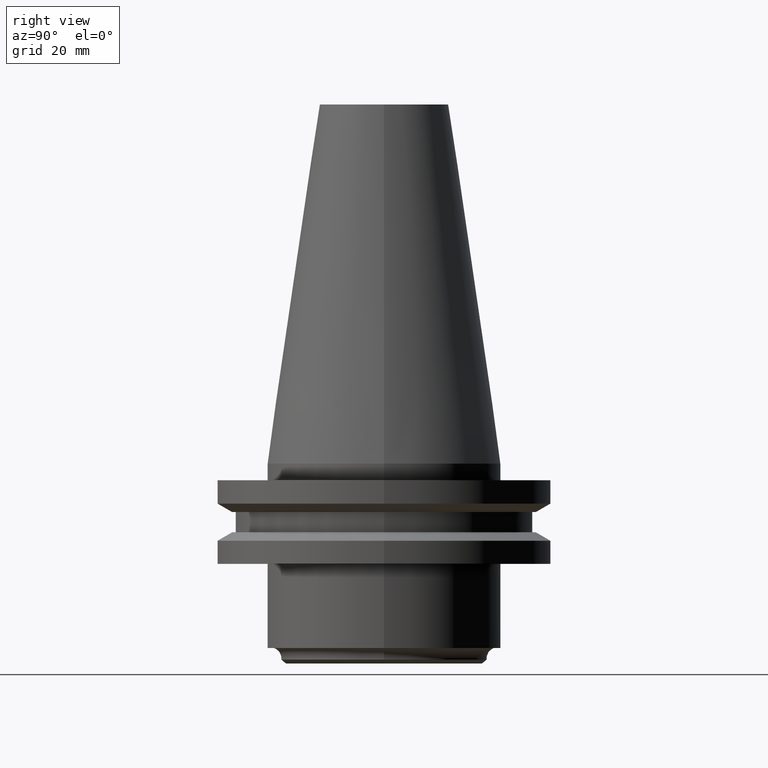
[diagram: clean part render]
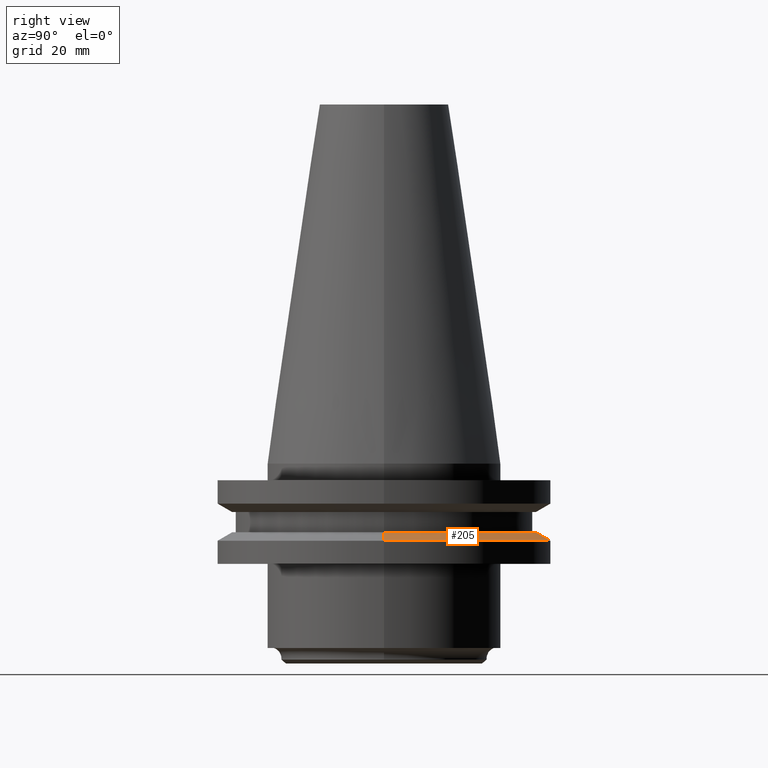
[diagram: same view with one face highlighted and labeled with its STEP entity id]
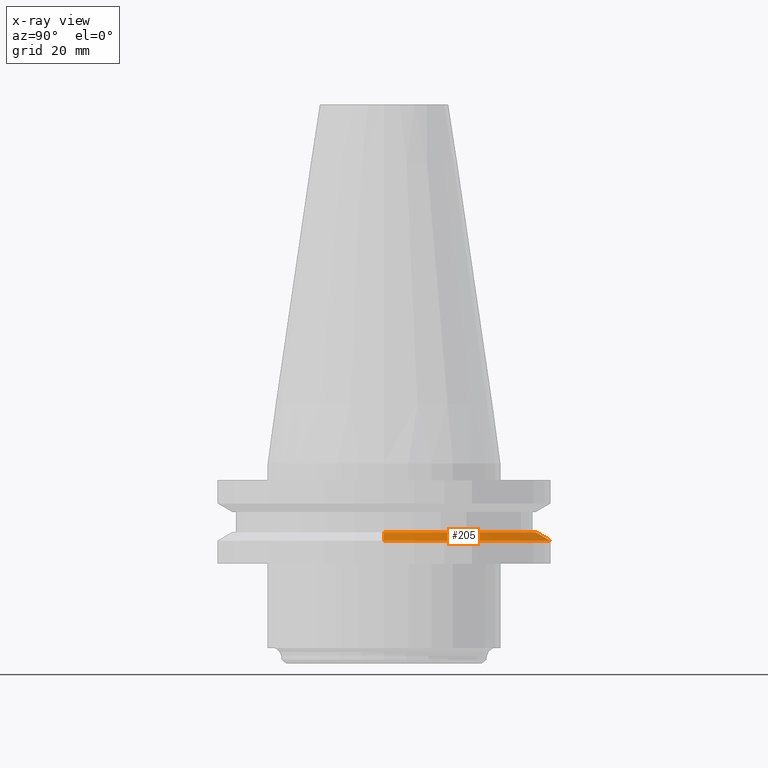
[diagram: x-ray of the same camera — body ghosted, the highlighted face saturated]
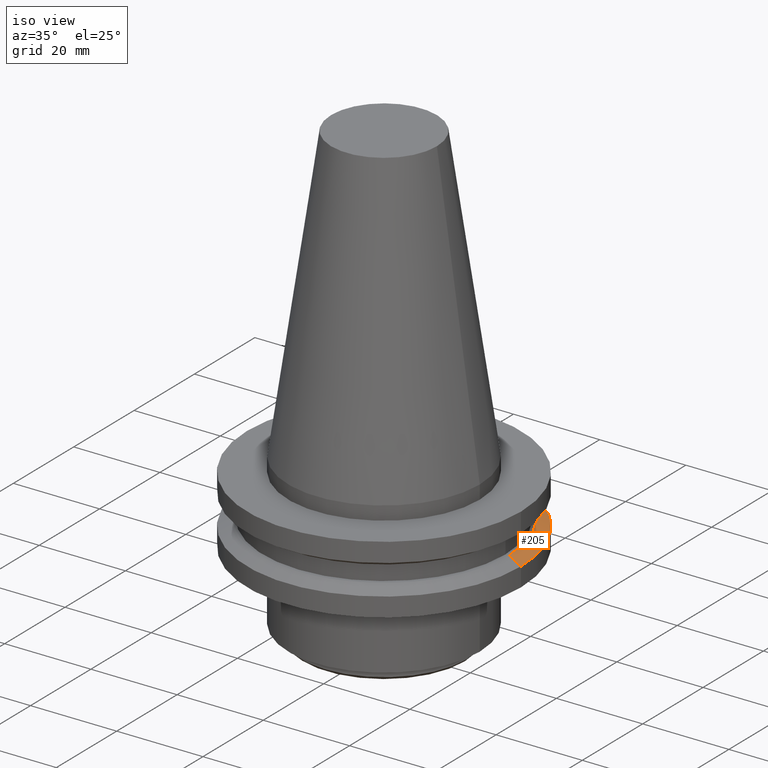
[diagram: same view with one face highlighted and labeled with its STEP entity id]
A machine part, right view. The second image highlights one B-rep face of the part: STEP entity #205.
The next image is the same camera in x-ray: the body ghosted, the highlighted face saturated — about 0% of this face is hidden behind the body in this view.
A second angle (iso view) of the same face is appended — the face is thin or edge-on in the first view.
In plain terms, the highlighted conical surface has half-angle 60 deg.
Its self-contained STEP definition (entity closure, byte-faithful):
#6 = ORIENTED_EDGE ( 'NONE', *, *, #641, .F. ) ;
#77 = EDGE_CURVE ( 'NONE', #220, #650, #473, .T. ) ;
#80 = EDGE_CURVE ( 'NONE', #495, #650, #657, .T. ) ;
#143 = EDGE_CURVE ( 'NONE', #373, #495, #324, .T. ) ;
#190 = CIRCLE ( 'NONE', #408, 28.97919780457008088 ) ;
#205 = ADVANCED_FACE ( 'NONE', ( #745 ), #497, .T. ) ;
#220 = VERTEX_POINT ( 'NONE', #682 ) ;
#224 = ORIENTED_EDGE ( 'NONE', *, *, #80, .T. ) ;
#227 = DIRECTION ( 'NONE',  ( -0.000000000000000000, -0.000000000000000000, 1.000000000000000000 ) ) ;
#232 = CARTESIAN_POINT ( 'NONE',  ( 0.000000000000000000, 0.000000000000000000, -14.65472339340266572 ) ) ;
#270 = CARTESIAN_POINT ( 'NONE',  ( 28.97919780457008088, 3.718590885307660666E-15, -13.05499999999999794 ) ) ;
#301 = AXIS2_PLACEMENT_3D ( 'NONE', #232, #227, #358 ) ;
#324 = LINE ( 'NONE', #522, #722 ) ;
#330 = DIRECTION ( 'NONE',  ( 0.000000000000000000, 0.000000000000000000, -1.000000000000000000 ) ) ;
#345 = CARTESIAN_POINT ( 'NONE',  ( -31.75000000000000000, 3.888253587292846476E-15, -14.65472339340266572 ) ) ;
#358 = DIRECTION ( 'NONE',  ( 1.000000000000000000, 0.000000000000000000, 0.000000000000000000 ) ) ;
#373 = VERTEX_POINT ( 'NONE', #270 ) ;
#380 = AXIS2_PLACEMENT_3D ( 'NONE', #390, #330, #504 ) ;
#390 = CARTESIAN_POINT ( 'NONE',  ( 0.000000000000000000, 0.000000000000000000, -14.65472339340266572 ) ) ;
#408 = AXIS2_PLACEMENT_3D ( 'NONE', #717, #796, #654 ) ;
#424 = CARTESIAN_POINT ( 'NONE',  ( -31.75000000000000000, 0.000000000000000000, -14.65472339340266572 ) ) ;
#441 = CARTESIAN_POINT ( 'NONE',  ( 31.75000000000000000, 0.000000000000000000, -14.65472339340266572 ) ) ;
#444 = DIRECTION ( 'NONE',  ( 0.8660254037844387076, 1.060575238724906915E-16, -0.4999999999999998890 ) ) ;
#473 = LINE ( 'NONE', #424, #554 ) ;
#487 = ORIENTED_EDGE ( 'NONE', *, *, #143, .T. ) ;
#495 = VERTEX_POINT ( 'NONE', #441 ) ;
#497 = CONICAL_SURFACE ( 'NONE', #380, 31.75000000000000000, 1.047197551196597853 ) ;
#504 = DIRECTION ( 'NONE',  ( -1.000000000000000000, 0.000000000000000000, 0.000000000000000000 ) ) ;
#522 = CARTESIAN_POINT ( 'NONE',  ( 31.75000000000000000, 3.888253587292846476E-15, -14.65472339340266572 ) ) ;
#528 = EDGE_LOOP ( 'NONE', ( #6, #487, #224, #629 ) ) ;
#554 = VECTOR ( 'NONE', #555, 1000.000000000000000 ) ;
#555 = DIRECTION ( 'NONE',  ( -0.8660254037844387076, 0.000000000000000000, -0.4999999999999998890 ) ) ;
#629 = ORIENTED_EDGE ( 'NONE', *, *, #77, .F. ) ;
#641 = EDGE_CURVE ( 'NONE', #373, #220, #190, .T. ) ;
#650 = VERTEX_POINT ( 'NONE', #345 ) ;
#654 = DIRECTION ( 'NONE',  ( 1.000000000000000000, 0.000000000000000000, 0.000000000000000000 ) ) ;
#657 = CIRCLE ( 'NONE', #301, 31.75000000000000000 ) ;
#682 = CARTESIAN_POINT ( 'NONE',  ( -28.97919780457008088, 0.000000000000000000, -13.05499999999999794 ) ) ;
#717 = CARTESIAN_POINT ( 'NONE',  ( 0.000000000000000000, 0.000000000000000000, -13.05499999999999794 ) ) ;
#722 = VECTOR ( 'NONE', #444, 1000.000000000000000 ) ;
#745 = FACE_OUTER_BOUND ( 'NONE', #528, .T. ) ;
#796 = DIRECTION ( 'NONE',  ( -0.000000000000000000, -0.000000000000000000, 1.000000000000000000 ) ) ;